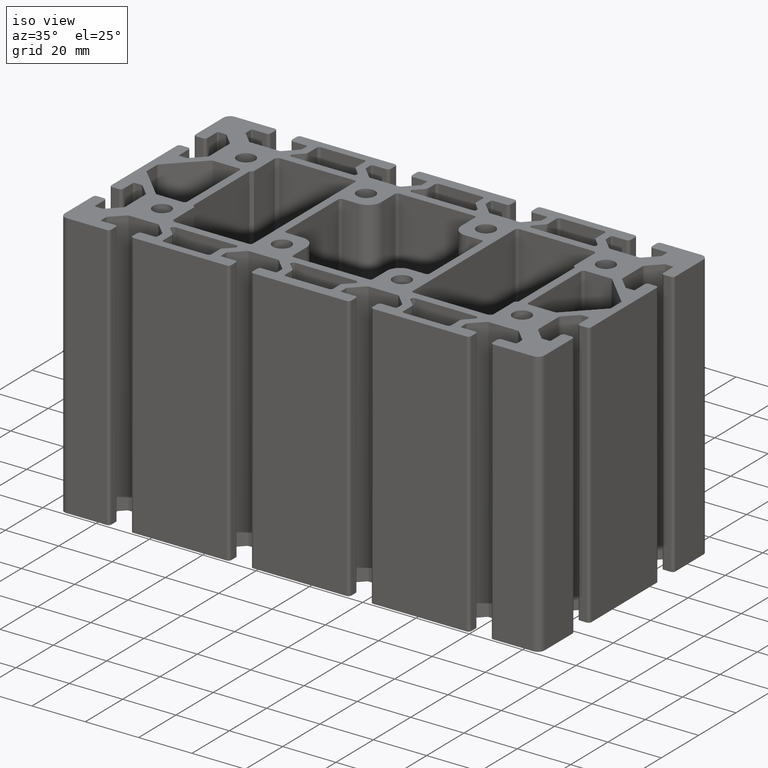
[diagram: clean part render]
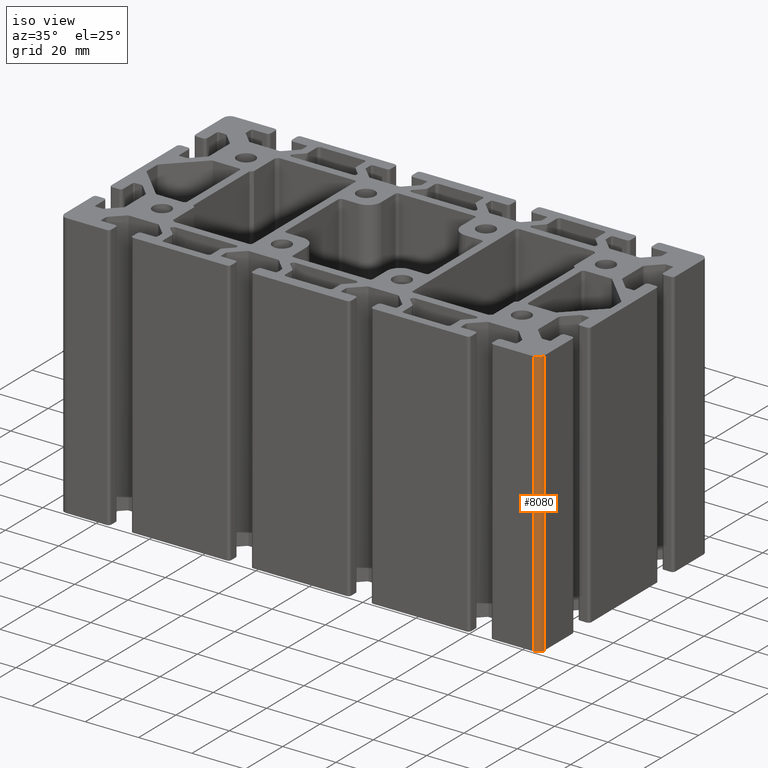
[diagram: same view with one face highlighted and labeled with its STEP entity id]
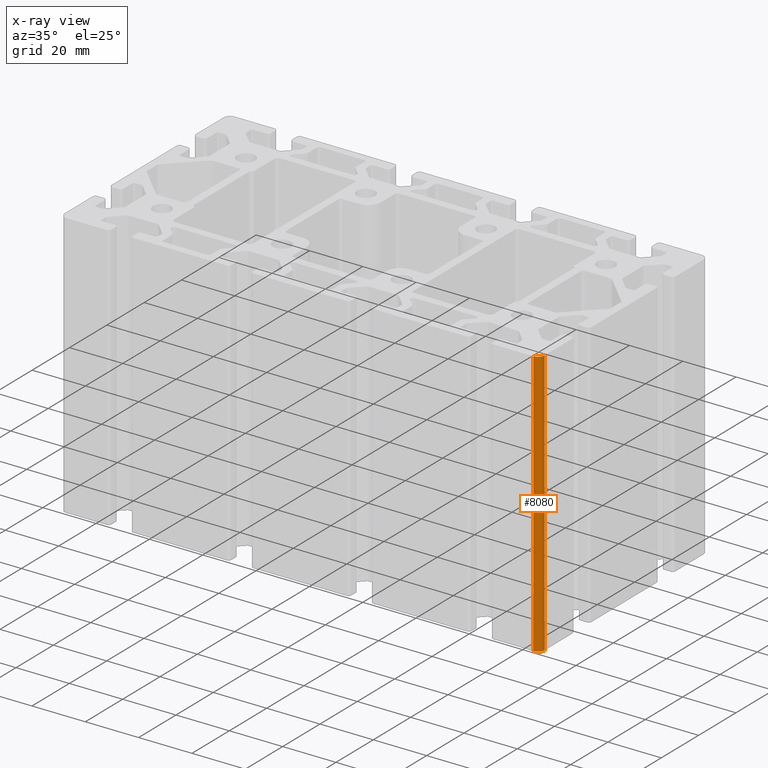
[diagram: x-ray of the same camera — body ghosted, the highlighted face saturated]
A machine part, iso view. The second image highlights one B-rep face of the part: STEP entity #8080.
The next image is the same camera in x-ray: the body ghosted, the highlighted face saturated — about 0% of this face is hidden behind the body in this view.
In plain terms, the highlighted cylindrical surface (edge-blend (fillet) strip) has radius 2.5 mm, axis along (0, 0, 1).
Its self-contained STEP definition (entity closure, byte-faithful):
#445=CIRCLE('',#8863,2.50000000000001);
#452=CIRCLE('',#8876,2.50000000000001);
#648=CYLINDRICAL_SURFACE('',#8875,2.50000000000001);
#1048=FACE_OUTER_BOUND('',#1477,.T.);
#1477=EDGE_LOOP('',(#7067,#7068,#7069,#7070));
#2272=LINE('',#13603,#3072);
#2278=LINE('',#13615,#3078);
#3072=VECTOR('',#11194,100.);
#3078=VECTOR('',#11204,100.);
#3887=VERTEX_POINT('',#13600);
#3888=VERTEX_POINT('',#13602);
#3891=VERTEX_POINT('',#13612);
#3892=VERTEX_POINT('',#13614);
#5056=EDGE_CURVE('',#3888,#3887,#2272,.T.);
#5062=EDGE_CURVE('',#3891,#3892,#2278,.T.);
#5075=EDGE_CURVE('',#3887,#3892,#445,.T.);
#5089=EDGE_CURVE('',#3888,#3891,#452,.T.);
#7067=ORIENTED_EDGE('',*,*,#5075,.T.);
#7068=ORIENTED_EDGE('',*,*,#5062,.F.);
#7069=ORIENTED_EDGE('',*,*,#5089,.F.);
#7070=ORIENTED_EDGE('',*,*,#5056,.T.);
#8080=ADVANCED_FACE('',(#1048),#648,.T.);
#8863=AXIS2_PLACEMENT_3D('',#13636,#11229,#11230);
#8875=AXIS2_PLACEMENT_3D('',#13659,#11260,#11261);
#8876=AXIS2_PLACEMENT_3D('',#13660,#11262,#11263);
#11194=DIRECTION('',(0.,0.,1.));
#11204=DIRECTION('',(0.,0.,1.));
#11229=DIRECTION('center_axis',(0.,0.,-1.));
#11230=DIRECTION('ref_axis',(0.,1.,0.));
#11260=DIRECTION('center_axis',(0.,0.,1.));
#11261=DIRECTION('ref_axis',(0.,1.,0.));
#11262=DIRECTION('center_axis',(0.,0.,-1.));
#11263=DIRECTION('ref_axis',(0.,1.,0.));
#13600=CARTESIAN_POINT('',(90.,-42.5,100.));
#13602=CARTESIAN_POINT('',(90.,-42.5,0.));
#13603=CARTESIAN_POINT('',(90.,-42.5,0.));
#13612=CARTESIAN_POINT('',(87.5,-45.,0.));
#13614=CARTESIAN_POINT('',(87.5,-45.,100.));
#13615=CARTESIAN_POINT('',(87.5,-45.,0.));
#13636=CARTESIAN_POINT('Origin',(87.5,-42.5,100.));
#13659=CARTESIAN_POINT('Origin',(87.5,-42.5,0.));
#13660=CARTESIAN_POINT('Origin',(87.5,-42.5,0.));